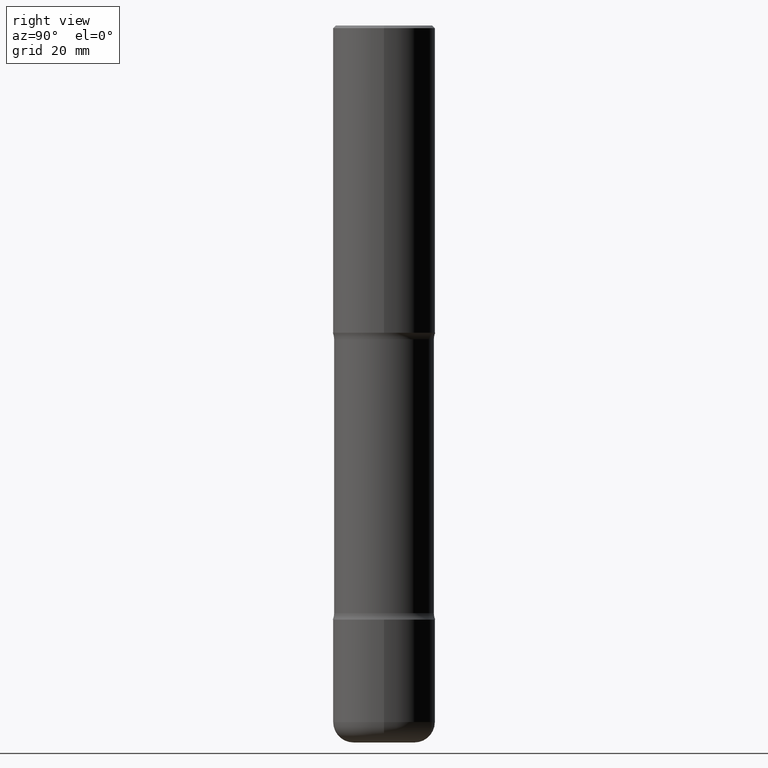
[diagram: clean part render]
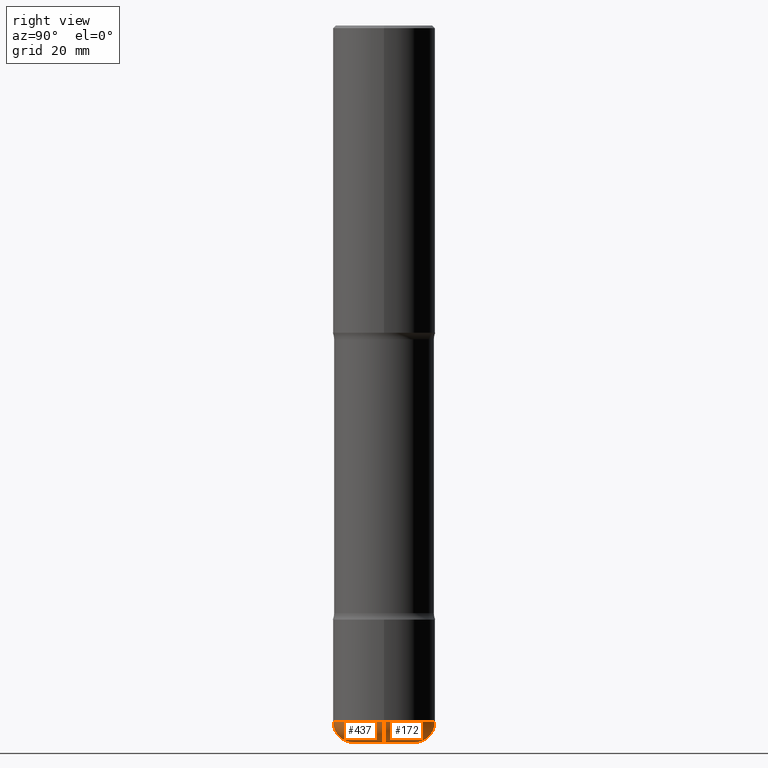
[diagram: same view with one multi-face feature highlighted, each face labeled with its STEP entity id]
A machine part, right view. The highlighted faces form ONE feature: a constant-radius fillet chain: 2 tangent blend faces with common blend radius 4.0005 mm. The faces share edges in the B-rep.
Their STEP definitions:
[1] entity #437 (Torus):
#43 = EDGE_CURVE ( 'NONE', #125, #156, #192, .T. ) ;
#45 = EDGE_CURVE ( 'NONE', #278, #451, #476, .T. ) ;
#49 = AXIS2_PLACEMENT_3D ( 'NONE', #158, #342, #269 ) ;
#56 = AXIS2_PLACEMENT_3D ( 'NONE', #91, #224, #401 ) ;
#91 = CARTESIAN_POINT ( 'NONE',  ( -0.2362000000000005484, -1.701613659070249273E-14, -5.354300000000000281 ) ) ;
#125 = VERTEX_POINT ( 'NONE', #551 ) ;
#136 = CIRCLE ( 'NONE', #484, 0.2362000000000005762 ) ;
#156 = VERTEX_POINT ( 'NONE', #295 ) ;
#158 = CARTESIAN_POINT ( 'NONE',  ( 1.309377362895707575E-28, -1.869443853256785386E-14, -5.354300000000000281 ) ) ;
#173 = CARTESIAN_POINT ( 'NONE',  ( 0.2362000000000005484, -2.034381431703735669E-14, -5.354300000000000281 ) ) ;
#192 = CIRCLE ( 'NONE', #56, 0.1574999999999992795 ) ;
#196 = DIRECTION ( 'NONE',  ( -2.445468806185136597E-29, 3.491481338843145583E-15, 1.000000000000000000 ) ) ;
#210 = ORIENTED_EDGE ( 'NONE', *, *, #43, .F. ) ;
#222 = AXIS2_PLACEMENT_3D ( 'NONE', #173, #454, #230 ) ;
#224 = DIRECTION ( 'NONE',  ( 7.105427357601001859E-15, 1.000000000000000000, -3.491481338843145583E-15 ) ) ;
#226 = EDGE_LOOP ( 'NONE', ( #210, #481, #519, #477 ) ) ;
#230 = DIRECTION ( 'NONE',  ( 1.000000000000000000, -6.982962677686269077E-15, 0.000000000000000000 ) ) ;
#238 = CARTESIAN_POINT ( 'NONE',  ( 1.347893496593123422E-28, -1.924434684343564562E-14, -5.511799999999999145 ) ) ;
#269 = DIRECTION ( 'NONE',  ( 1.000000000000000000, -6.982962677686269866E-15, 0.000000000000000000 ) ) ;
#278 = VERTEX_POINT ( 'NONE', #424 ) ;
#295 = CARTESIAN_POINT ( 'NONE',  ( -0.3937000000000001609, -1.589703178188033670E-14, -5.354300000000000281 ) ) ;
#296 = DIRECTION ( 'NONE',  ( 1.000000000000000000, -6.982962677686261977E-15, 4.883557194083110659E-29 ) ) ;
#342 = DIRECTION ( 'NONE',  ( -2.445468806185136597E-29, 3.491481338843145583E-15, 1.000000000000000000 ) ) ;
#358 = FACE_OUTER_BOUND ( 'NONE', #226, .T. ) ;
#361 = AXIS2_PLACEMENT_3D ( 'NONE', #471, #196, #296 ) ;
#374 = CIRCLE ( 'NONE', #49, 0.3937000000000004940 ) ;
#401 = DIRECTION ( 'NONE',  ( -1.000000000000000000, 7.105427357601005014E-15, 0.000000000000000000 ) ) ;
#403 = EDGE_CURVE ( 'NONE', #125, #278, #136, .T. ) ;
#412 = DIRECTION ( 'NONE',  ( 1.000000000000000000, -6.982962677686272233E-15, 0.000000000000000000 ) ) ;
#419 = DIRECTION ( 'NONE',  ( -2.445468806185136597E-29, 3.491481338843145583E-15, 1.000000000000000000 ) ) ;
#424 = CARTESIAN_POINT ( 'NONE',  ( 0.2362000000000005762, -2.089372262790514846E-14, -5.511799999999999145 ) ) ;
#437 = ADVANCED_FACE ( 'NONE', ( #358 ), #537, .T. ) ;
#442 = CARTESIAN_POINT ( 'NONE',  ( 0.3937000000000001609, -2.144363093877294338E-14, -5.354300000000000281 ) ) ;
#451 = VERTEX_POINT ( 'NONE', #442 ) ;
#454 = DIRECTION ( 'NONE',  ( -6.982962677686266711E-15, -1.000000000000000000, 3.491481338843145583E-15 ) ) ;
#471 = CARTESIAN_POINT ( 'NONE',  ( 1.309377362895707575E-28, -1.869443853256785386E-14, -5.354300000000000281 ) ) ;
#476 = CIRCLE ( 'NONE', #222, 0.1574999999999992795 ) ;
#477 = ORIENTED_EDGE ( 'NONE', *, *, #511, .F. ) ;
#481 = ORIENTED_EDGE ( 'NONE', *, *, #403, .T. ) ;
#484 = AXIS2_PLACEMENT_3D ( 'NONE', #238, #419, #412 ) ;
#511 = EDGE_CURVE ( 'NONE', #156, #451, #374, .T. ) ;
#519 = ORIENTED_EDGE ( 'NONE', *, *, #45, .T. ) ;
#537 = TOROIDAL_SURFACE ( 'NONE', #361, 0.2362000000000005484, 0.1574999999999992517 ) ;
#551 = CARTESIAN_POINT ( 'NONE',  ( -0.2362000000000005762, -1.673153834172531376E-14, -5.511799999999999145 ) ) ;
[2] entity #172 (Torus):
#40 = AXIS2_PLACEMENT_3D ( 'NONE', #286, #493, #69 ) ;
#43 = EDGE_CURVE ( 'NONE', #125, #156, #192, .T. ) ;
#45 = EDGE_CURVE ( 'NONE', #278, #451, #476, .T. ) ;
#56 = AXIS2_PLACEMENT_3D ( 'NONE', #91, #224, #401 ) ;
#65 = CARTESIAN_POINT ( 'NONE',  ( 1.309377362895707575E-28, -1.869443853256785386E-14, -5.354300000000000281 ) ) ;
#69 = DIRECTION ( 'NONE',  ( 1.000000000000000000, -6.982962677686272233E-15, 0.000000000000000000 ) ) ;
#91 = CARTESIAN_POINT ( 'NONE',  ( -0.2362000000000005484, -1.701613659070249273E-14, -5.354300000000000281 ) ) ;
#94 = CIRCLE ( 'NONE', #281, 0.3937000000000004940 ) ;
#109 = CARTESIAN_POINT ( 'NONE',  ( 1.309377362895707575E-28, -1.869443853256785386E-14, -5.354300000000000281 ) ) ;
#125 = VERTEX_POINT ( 'NONE', #551 ) ;
#156 = VERTEX_POINT ( 'NONE', #295 ) ;
#172 = ADVANCED_FACE ( 'NONE', ( #378 ), #193, .T. ) ;
#173 = CARTESIAN_POINT ( 'NONE',  ( 0.2362000000000005484, -2.034381431703735669E-14, -5.354300000000000281 ) ) ;
#181 = DIRECTION ( 'NONE',  ( -2.445468806185136597E-29, 3.491481338843145583E-15, 1.000000000000000000 ) ) ;
#192 = CIRCLE ( 'NONE', #56, 0.1574999999999992795 ) ;
#193 = TOROIDAL_SURFACE ( 'NONE', #495, 0.2362000000000005484, 0.1574999999999992517 ) ;
#214 = DIRECTION ( 'NONE',  ( 1.000000000000000000, -6.982962677686261977E-15, 4.883557194083110659E-29 ) ) ;
#215 = ORIENTED_EDGE ( 'NONE', *, *, #306, .F. ) ;
#218 = ORIENTED_EDGE ( 'NONE', *, *, #43, .T. ) ;
#222 = AXIS2_PLACEMENT_3D ( 'NONE', #173, #454, #230 ) ;
#224 = DIRECTION ( 'NONE',  ( 7.105427357601001859E-15, 1.000000000000000000, -3.491481338843145583E-15 ) ) ;
#230 = DIRECTION ( 'NONE',  ( 1.000000000000000000, -6.982962677686269077E-15, 0.000000000000000000 ) ) ;
#278 = VERTEX_POINT ( 'NONE', #424 ) ;
#281 = AXIS2_PLACEMENT_3D ( 'NONE', #109, #181, #453 ) ;
#286 = CARTESIAN_POINT ( 'NONE',  ( 1.347893496593123422E-28, -1.924434684343564562E-14, -5.511799999999999145 ) ) ;
#294 = CIRCLE ( 'NONE', #40, 0.2362000000000005762 ) ;
#295 = CARTESIAN_POINT ( 'NONE',  ( -0.3937000000000001609, -1.589703178188033670E-14, -5.354300000000000281 ) ) ;
#306 = EDGE_CURVE ( 'NONE', #451, #156, #94, .T. ) ;
#378 = FACE_OUTER_BOUND ( 'NONE', #472, .T. ) ;
#384 = EDGE_CURVE ( 'NONE', #278, #125, #294, .T. ) ;
#401 = DIRECTION ( 'NONE',  ( -1.000000000000000000, 7.105427357601005014E-15, 0.000000000000000000 ) ) ;
#424 = CARTESIAN_POINT ( 'NONE',  ( 0.2362000000000005762, -2.089372262790514846E-14, -5.511799999999999145 ) ) ;
#441 = ORIENTED_EDGE ( 'NONE', *, *, #384, .T. ) ;
#442 = CARTESIAN_POINT ( 'NONE',  ( 0.3937000000000001609, -2.144363093877294338E-14, -5.354300000000000281 ) ) ;
#451 = VERTEX_POINT ( 'NONE', #442 ) ;
#453 = DIRECTION ( 'NONE',  ( 1.000000000000000000, -6.982962677686269866E-15, 0.000000000000000000 ) ) ;
#454 = DIRECTION ( 'NONE',  ( -6.982962677686266711E-15, -1.000000000000000000, 3.491481338843145583E-15 ) ) ;
#472 = EDGE_LOOP ( 'NONE', ( #441, #218, #215, #523 ) ) ;
#476 = CIRCLE ( 'NONE', #222, 0.1574999999999992795 ) ;
#493 = DIRECTION ( 'NONE',  ( -2.445468806185136597E-29, 3.491481338843145583E-15, 1.000000000000000000 ) ) ;
#495 = AXIS2_PLACEMENT_3D ( 'NONE', #65, #555, #214 ) ;
#523 = ORIENTED_EDGE ( 'NONE', *, *, #45, .F. ) ;
#551 = CARTESIAN_POINT ( 'NONE',  ( -0.2362000000000005762, -1.673153834172531376E-14, -5.511799999999999145 ) ) ;
#555 = DIRECTION ( 'NONE',  ( -2.445468806185136597E-29, 3.491481338843145583E-15, 1.000000000000000000 ) ) ;